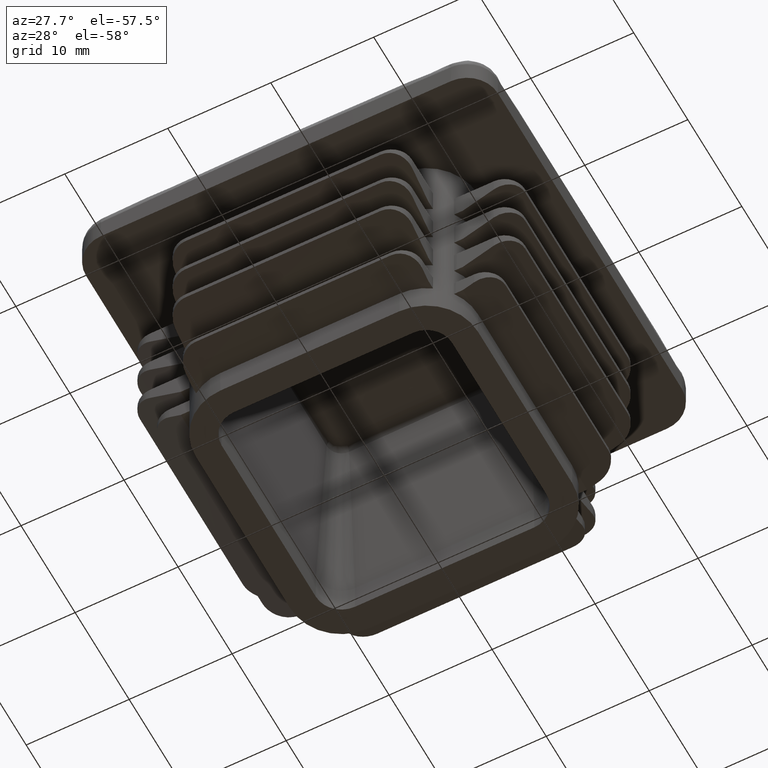
[diagram: clean part render]
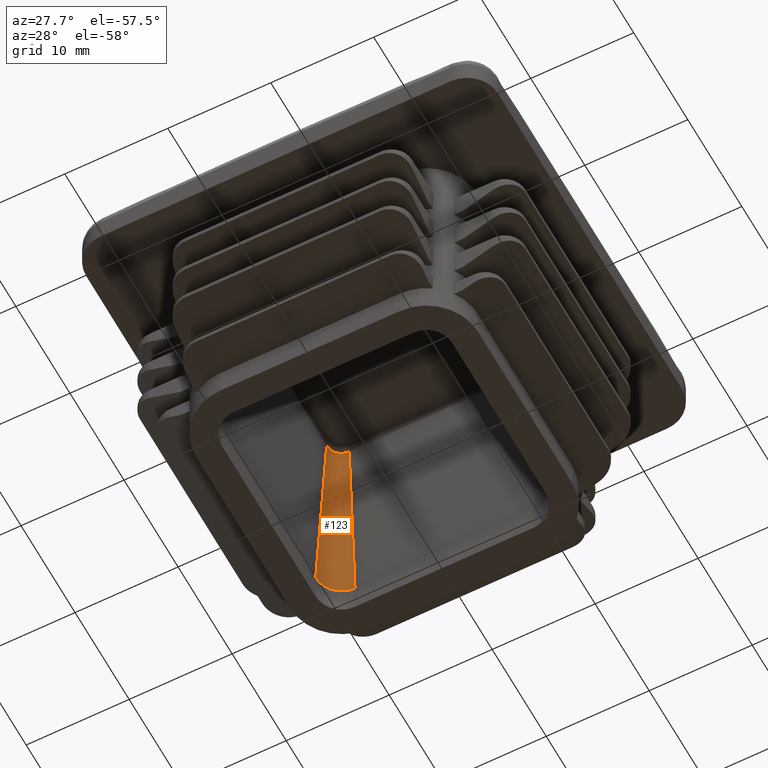
[diagram: same view with one face highlighted and labeled with its STEP entity id]
A machine part, auxiliary view. The second image highlights one B-rep face of the part: STEP entity #123.
In plain terms, the highlighted conical surface has half-angle 3 deg.
Its self-contained STEP definition (entity closure, byte-faithful):
#123 = ADVANCED_FACE( '', ( #463 ), #464, .F. );
#463 = FACE_OUTER_BOUND( '', #2050, .T. );
#464 = CONICAL_SURFACE( '', #2051, 2.50000000000000, 0.0523598775598299 );
#2050 = EDGE_LOOP( '', ( #3830, #3831, #3832, #3833 ) );
#2051 = AXIS2_PLACEMENT_3D( '', #3834, #3835, #3836 );
#3830 = ORIENTED_EDGE( '', *, *, #5830, .F. );
#3831 = ORIENTED_EDGE( '', *, *, #5831, .T. );
#3832 = ORIENTED_EDGE( '', *, *, #5828, .T. );
#3833 = ORIENTED_EDGE( '', *, *, #5811, .F. );
#3834 = CARTESIAN_POINT( '', ( -8.70000000000000, 8.70000000000000, 3.00000000000000 ) );
#3835 = DIRECTION( '', ( 0.000000000000000, 0.000000000000000, -1.00000000000000 ) );
#3836 = DIRECTION( '', ( 1.00000000000000, 0.000000000000000, 0.000000000000000 ) );
#5811 = EDGE_CURVE( '', #6665, #6668, #6669, .T. );
#5828 = EDGE_CURVE( '', #6696, #6668, #6697, .T. );
#5830 = EDGE_CURVE( '', #6699, #6665, #6700, .T. );
#5831 = EDGE_CURVE( '', #6699, #6696, #6701, .T. );
#6665 = VERTEX_POINT( '', #8921 );
#6668 = VERTEX_POINT( '', #8926 );
#6669 = CIRCLE( '', #8927, 2.50000000000000 );
#6696 = VERTEX_POINT( '', #9191 );
#6697 = LINE( '', #9192, #9193 );
#6699 = VERTEX_POINT( '', #9207 );
#6700 = LINE( '', #9208, #9209 );
#6701 = B_SPLINE_CURVE_WITH_KNOTS( '', 3, ( #9210, #9211, #9212, #9213, #9214, #9215, #9216, #9217, #9218, #9219, #9220, #9221, #9222, #9223, #9224, #9225, #9226, #9227, #9228, #9229, #9230, #9231, #9232, #9233, #9234, #9235, #9236, #9237, #9238, #9239, #9240, #9241, #9242, #9243, #9244, #9245, #9246, #9247, #9248, #9249, #9250 ), .UNSPECIFIED., .F., .F., ( 4, 1, 1, 2, 2, 2, 2, 1, 2, 1, 2, 2, 1, 1, 2, 2, 2, 2, 1, 2, 2, 2, 1, 1, 4 ), ( 1.73472347597681E-018, 0.000140123062595257, 0.000280246125190512, 0.000420369187785768, 0.000455399953434578, 0.000490430719083389, 0.000560492250381004, 0.000700615312976228, 0.000840738375571453, 0.000910799906869069, 0.000945830672517876, 0.000980861438166685, 0.00112098450076192, 0.00126110756335715, 0.00140123062595238, 0.00143626139160119, 0.00147129215724999, 0.00154135368854761, 0.00168147675114283, 0.00182159981373805, 0.00189166134503566, 0.00192669211068447, 0.00196172287633327, 0.00210184593892849, 0.00224196900152370 ), .UNSPECIFIED. );
#8921 = CARTESIAN_POINT( '', ( -8.70000000000000, 11.2000000000000, 3.00000000000000 ) );
#8926 = CARTESIAN_POINT( '', ( -11.2000000000000, 8.70000000000001, 3.00000000000000 ) );
#8927 = AXIS2_PLACEMENT_3D( '', #10868, #10869, #10870 );
#9191 = CARTESIAN_POINT( '', ( -10.1349974489749, 8.70000000000001, 23.3214592488889 ) );
#9192 = CARTESIAN_POINT( '', ( -11.2000000000000, 8.70000000000001, 3.00000000000000 ) );
#9193 = VECTOR( '', #10876, 1000.00000000000 );
#9207 = CARTESIAN_POINT( '', ( -8.70000000000000, 10.1349974489749, 23.3214592488889 ) );
#9208 = CARTESIAN_POINT( '', ( -8.70000000000000, 11.2000000000000, 3.00000000000000 ) );
#9209 = VECTOR( '', #10877, 1000.00000000000 );
#9210 = CARTESIAN_POINT( '', ( -8.70000000000000, 10.1349974489749, 23.3214592488889 ) );
#9211 = CARTESIAN_POINT( '', ( -8.74737746027476, 10.1350143593327, 23.3211365800402 ) );
#9212 = CARTESIAN_POINT( '', ( -8.84133793643729, 10.1303662434467, 23.3205285714518 ) );
#9213 = CARTESIAN_POINT( '', ( -8.97997761141255, 10.1098332476182, 23.3197246393029 ) );
#9214 = CARTESIAN_POINT( '', ( -9.07087955117128, 10.0871601173748, 23.3192602666127 ) );
#9215 = CARTESIAN_POINT( '', ( -9.12720596669824, 10.0701176023943, 23.3189929071059 ) );
#9216 = CARTESIAN_POINT( '', ( -9.13844682870502, 10.0665651774244, 23.3189405815189 ) );
#9217 = CARTESIAN_POINT( '', ( -9.16087920596271, 10.0591695100037, 23.3188382464904 ) );
#9218 = CARTESIAN_POINT( '', ( -9.17208572908143, 10.0553208123381, 23.3187881720383 ) );
#9219 = CARTESIAN_POINT( '', ( -9.20551028602086, 10.0433766171703, 23.3186419866388 ) );
#9220 = CARTESIAN_POINT( '', ( -9.22750645559707, 10.0348949715013, 23.3185500150225 ) );
#9221 = CARTESIAN_POINT( '', ( -9.29265176219694, 10.0079249640736, 23.3182902215831 ) );
#9222 = CARTESIAN_POINT( '', ( -9.37726767721707, 9.96790541618364, 23.3179867432705 ) );
#9223 = CARTESIAN_POINT( '', ( -9.45747762962031, 9.91991695673826, 23.3177674878348 ) );
#9224 = CARTESIAN_POINT( '', ( -9.51596613263317, 9.88090701986096, 23.3176349451733 ) );
#9225 = CARTESIAN_POINT( '', ( -9.54479240625968, 9.86064606935418, 23.3175766626935 ) );
#9226 = CARTESIAN_POINT( '', ( -9.57298160504272, 9.83923286371742, 23.3175305560903 ) );
#9227 = CARTESIAN_POINT( '', ( -9.59163119302412, 9.82469837215939, 23.3175025553808 ) );
#9228 = CARTESIAN_POINT( '', ( -9.60089241433322, 9.81729463406183, 23.3174899163858 ) );
#9229 = CARTESIAN_POINT( '', ( -9.64659117772425, 9.77982562928054, 23.3174339182116 ) );
#9230 = CARTESIAN_POINT( '', ( -9.71618911561749, 9.71673265437733, 23.3173896567623 ) );
#9231 = CARTESIAN_POINT( '', ( -9.81035019540638, 9.61295512055004, 23.3174550896111 ) );
#9232 = CARTESIAN_POINT( '', ( -9.86631693936797, 9.53769284816212, 23.3175863837193 ) );
#9233 = CARTESIAN_POINT( '', ( -9.89911175417380, 9.48870379680104, 23.3176965779630 ) );
#9234 = CARTESIAN_POINT( '', ( -9.90556124185749, 9.47880825208060, 23.3177200268769 ) );
#9235 = CARTESIAN_POINT( '', ( -9.91823877963030, 9.45881947342978, 23.3177697769496 ) );
#9236 = CARTESIAN_POINT( '', ( -9.92445760433080, 9.44874006065326, 23.3177960468364 ) );
#9237 = CARTESIAN_POINT( '', ( -9.94268322897037, 9.41836778752111, 23.3178787008201 ) );
#9238 = CARTESIAN_POINT( '', ( -9.95428912547669, 9.39789454820611, 23.3179390408190 ) );
#9239 = CARTESIAN_POINT( '', ( -9.98750303731900, 9.33581196791098, 23.3181354875938 ) );
#9240 = CARTESIAN_POINT( '', ( -10.0275190919236, 9.25127069386846, 23.3184384816954 ) );
#9241 = CARTESIAN_POINT( '', ( -10.0591223692444, 9.16325230868780, 23.3188224138951 ) );
#9242 = CARTESIAN_POINT( '', ( -10.0796257292114, 9.09591629068009, 23.3191411484421 ) );
#9243 = CARTESIAN_POINT( '', ( -10.0859260548016, 9.07325018935532, 23.3192525332956 ) );
#9244 = CARTESIAN_POINT( '', ( -10.0945608425170, 9.03891389759971, 23.3194274612581 ) );
#9245 = CARTESIAN_POINT( '', ( -10.0973043279756, 9.02740672877669, 23.3194871088070 ) );
#9246 = CARTESIAN_POINT( '', ( -10.1025107580528, 9.00430215295900, 23.3196089291108 ) );
#9247 = CARTESIAN_POINT( '', ( -10.1147925582190, 8.94645846178275, 23.3199190413421 ) );
#9248 = CARTESIAN_POINT( '', ( -10.1303653577945, 8.84160784616155, 23.3205267399620 ) );
#9249 = CARTESIAN_POINT( '', ( -10.1350143593355, 8.74737746796423, 23.3211365799878 ) );
#9250 = CARTESIAN_POINT( '', ( -10.1349974489749, 8.70000000000001, 23.3214592488889 ) );
#10868 = CARTESIAN_POINT( '', ( -8.70000000000000, 8.70000000000000, 3.00000000000000 ) );
#10869 = DIRECTION( '', ( 0.000000000000000, 0.000000000000000, 1.00000000000000 ) );
#10870 = DIRECTION( '', ( 6.93889390390722E-016, 1.00000000000000, 0.000000000000000 ) );
#10876 = DIRECTION( '', ( -0.0523359562429438, 1.03214474543540E-032, -0.998629534754574 ) );
#10877 = DIRECTION( '', ( 3.63153647729319E-017, 0.0523359562429438, -0.998629534754574 ) );